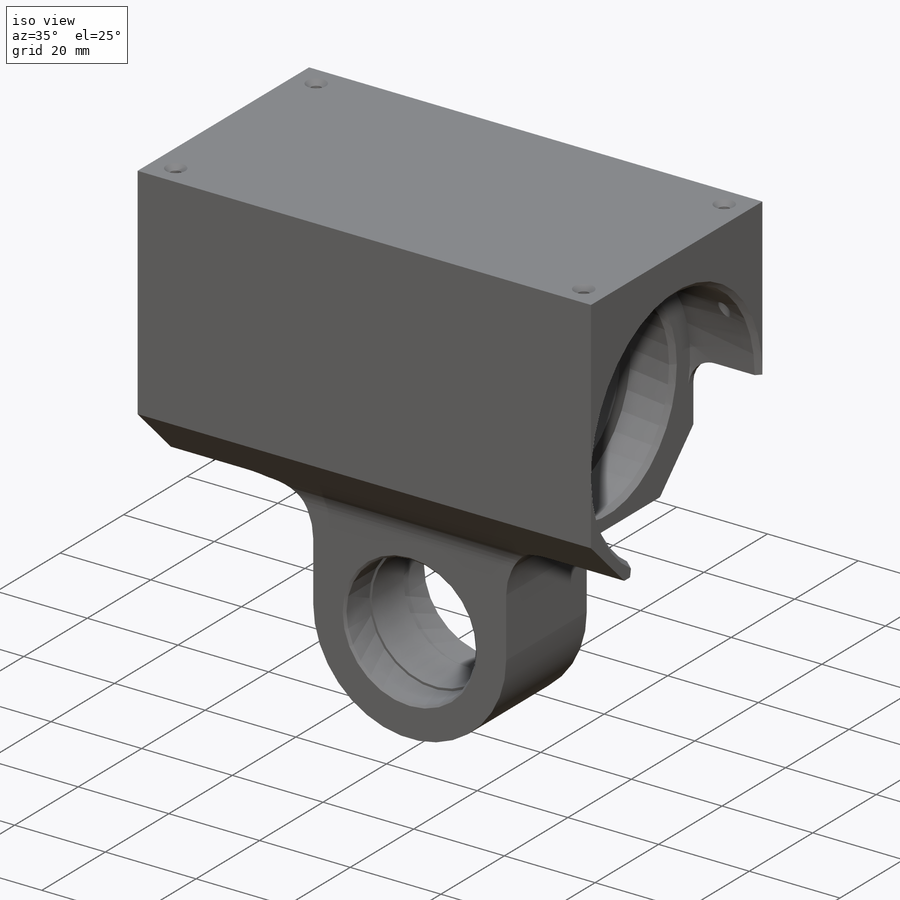
[diagram: iso view]
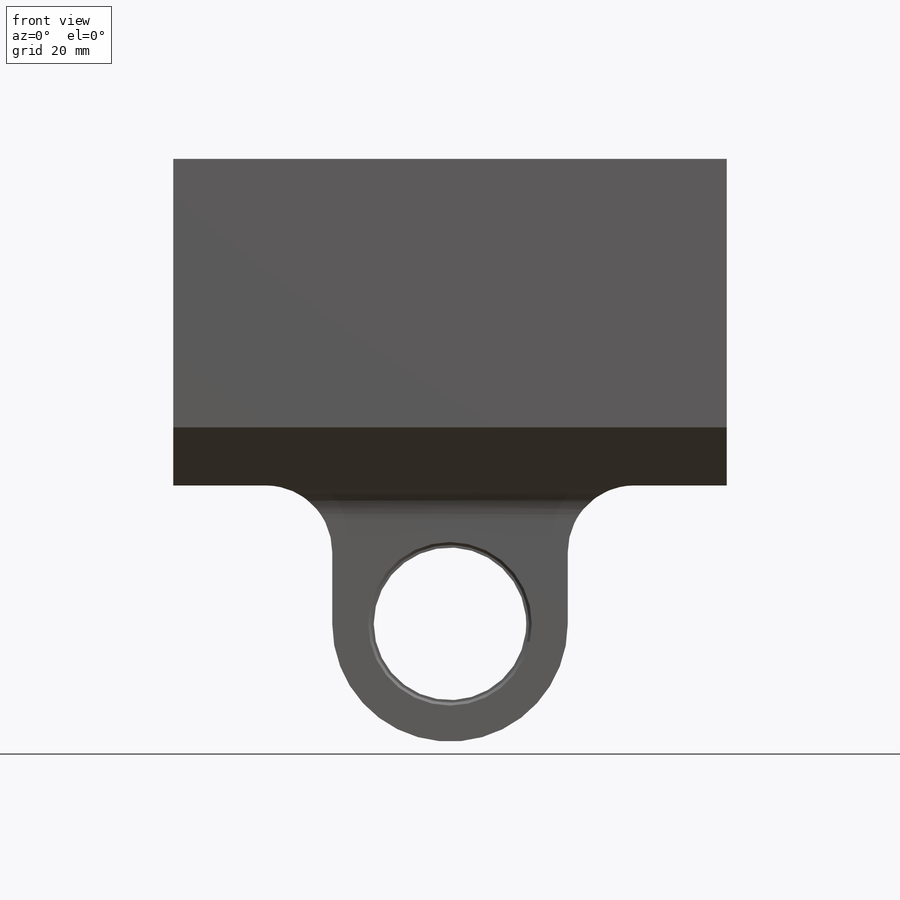
[diagram: front view]
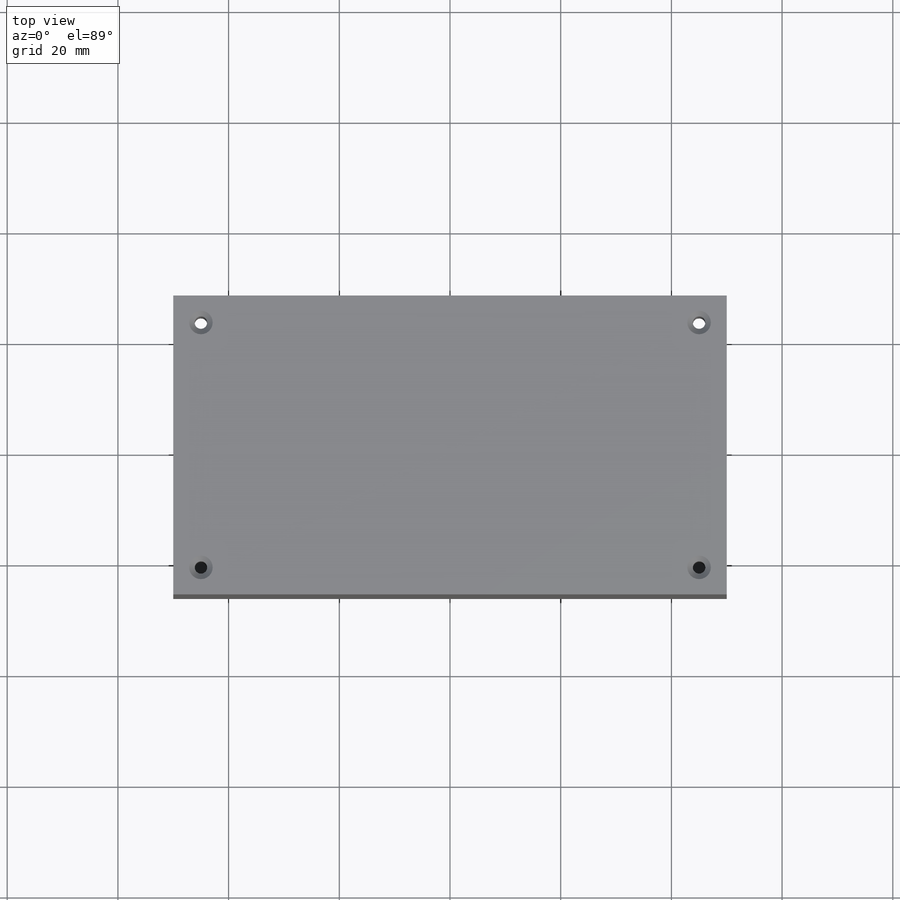
[diagram: top view]
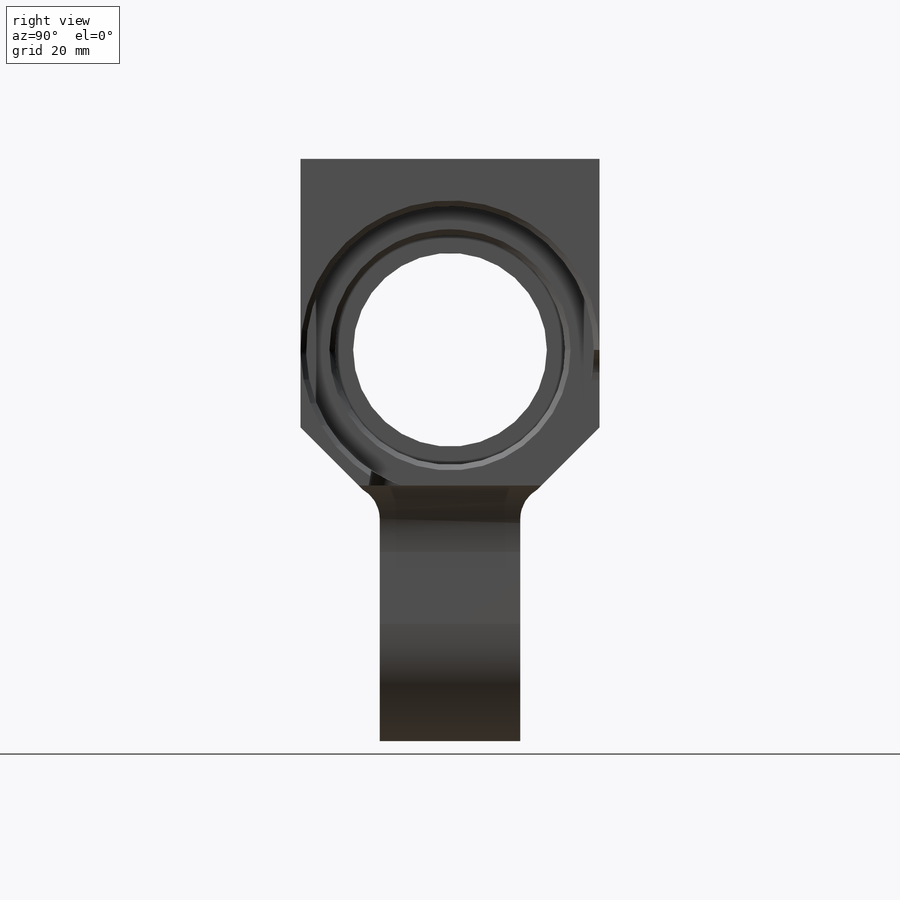
[diagram: right view]
SOLIDWORKS PART (.sldprt)
format: sldprt  version: not decoded by parser v0  size: 672,256 bytes
history: native  units: mm
features: sketch x17, chamfer x8, extrude x7, cut_extrude x5, fillet x4, thread x4, plane x2, mirror x2, hole x2, material x1 (+13 scaffold rows collapsed)
feature tree (65):
  scaffold x13  (default folders/planes/origin — collapsed)
  material  "Material <not specified>"
  sketch  "Master"  dims[D1=28.56mm D2=7.0mm D3=61.0mm D4=10.0mm D5=100.0mm]
  sketch  "Sketch2"
  extrude  "Boss-Extrude1"  Depth=25.4mm
  sketch  "Sketch4"  dims[D1=59.0mm D2=100.0mm D3=25.0mm]
  extrude  "Boss-Extrude2"  Depth=54mm
  sketch  "Sketch3"  dims[c1.D1=35.0mm c1.D2=30.0mm c1.D3=0.1524mm c2.D2=7.0mm]
  cut_extrude  "Cut-Extrude1"  [1 undecoded]
  sketch  "Sketch5"  dims[D1=0.5mm]
  extrude  "Boss-Extrude3"  Depth=10mm
  fillet  "Fillet1"  Radius=12mm
  sketch  "Sketch6"  dims[D1=52.0mm D2=6.35mm D3=6.35mm]
  cut_extrude  "Cut-Extrude2"  Depth=15.24mm
  plane  "Plane2"  Offset=10mm
  mirror  "Mirror1"
  plane  "Plane1"  Offset=16mm
  sketch  "Sketch7"  dims[c1.D1=15.494mm c1.D4=7.747mm c1.D2=11.938mm c1.D3=14.0mm c2.D4=4.0mm c2.D5=10.0mm c2.D6=9.938mm]
  extrude  "Boss-Extrude6"  Depth=20mm
  sketch  "Sketch8"  dims[D1=2.2mm D2=36.5mm D3=12.0mm D4=1.0mm]
  extrude  "Boss-Extrude7"  [1 undecoded]
  hole  "CBORE for #4 Binding Head Machine Screw1"  Diameter=3.2639mm Depth=29.937mm
  sketch  "Sketch10"  dims[D1=5.0mm D2=5.0mm]
  sketch  "Sketch11"  dims[hole-wizard template sketch: 28 standard entries collapsed; hole parameters kept: c8.Hole Dia.=3.2639mm c8.Hole Depth=29.937mm c8.C'Bore Dia.=~6.74624mm c8.C'Bore Depth=~3.227197mm c8.D5=~14.816244mm c8.Drill Angle=118.0deg]
  hole  "#4-40 Tapped Hole1"  [1 undecoded]
  sketch  "Sketch13"
  thread  "Hole Thread5"  Diameter=2.8448mm  [1 undecoded]
  thread  "Hole Thread6"  Diameter=2.8448mm  [1 undecoded]
  thread  "Hole Thread7"  Diameter=2.8448mm  [1 undecoded]
  thread  "Hole Thread8"  Diameter=2.8448mm  [1 undecoded]
  sketch  "Sketch12"  dims[hole-wizard template sketch: 60 standard entries collapsed; hole parameters kept: c18.Thru Tap Drill Depth=~20.844072mm]
  fillet  "Fillet2"  Radius=7.5mm
  sketch  "Sketch15"  dims[D1=41.5766mm]
  cut_extrude  "Cut-Extrude3"  Depth=9.525mm
  mirror  "Mirror2"
  chamfer  "Chamfer1"  Distance=1mm Angle=45deg
  chamfer  "Chamfer3"  Distance=10.5mm Angle=45deg
  sketch  "Sketch16"  dims[D1=16.5mm]
  cut_extrude  "Cut-Extrude4"  Depth=1.6mm
  sketch  "Sketch17"  dims[D1=7.5mm]
  extrude  "Boss-Extrude8"  Depth=1.6mm
  sketch  "Sketch18"  dims[D1=2.0mm D2=11.0mm]
  cut_extrude  "Cut-Extrude5"  [1 undecoded]
  chamfer  "Chamfer5"  Distance=1.5mm Angle=45deg
  chamfer  "Chamfer6"  Distance=1.5mm Angle=45deg
  fillet  "Fillet3"  Radius=5.5mm
  chamfer  "Chamfer7"  Distance=6mm Angle=80deg
  fillet  "Fillet4"  Radius=5.5mm
  chamfer  "Chamfer8"  Distance=1mm Angle=45deg
  chamfer  "Chamfer10"  Distance=1mm Angle=45deg
  chamfer  "Chamfer11"  Distance=0.5mm Angle=45deg
  sketch  "Sketch19"  dims[D2=3.2mm D1=2.0mm]
  extrude  "Boss-Extrude9"  [1 undecoded]
decode coverage: 40 of 49 modeling features carry decoded parameters
note: ~ marks probable driven/reference dimensions
note: 9 parameter values undecoded
summary: no parameter record found for 5 features
note: suppression state not decoded; provenance and decode notes live in map.json
